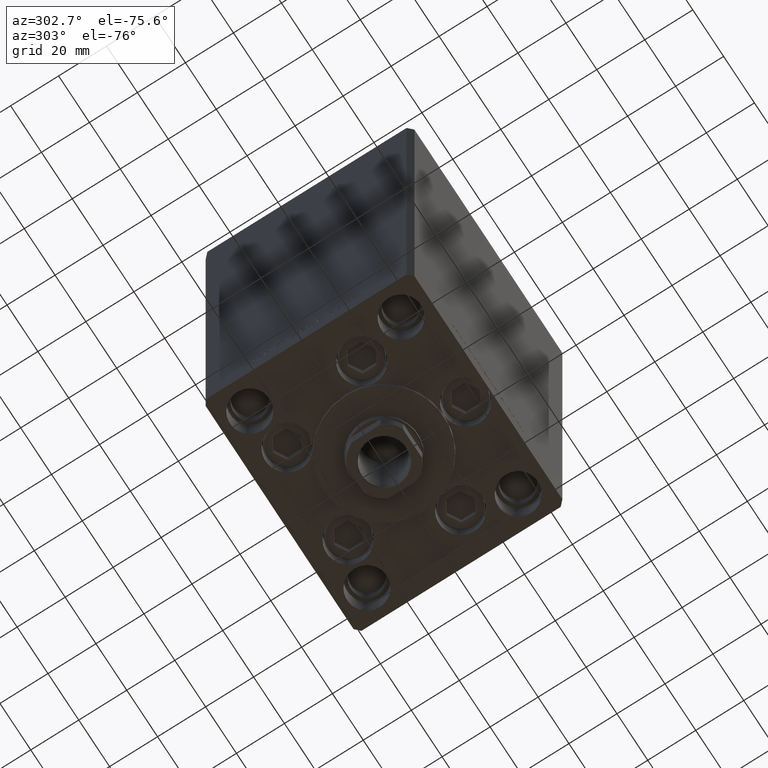
[diagram: clean part render]
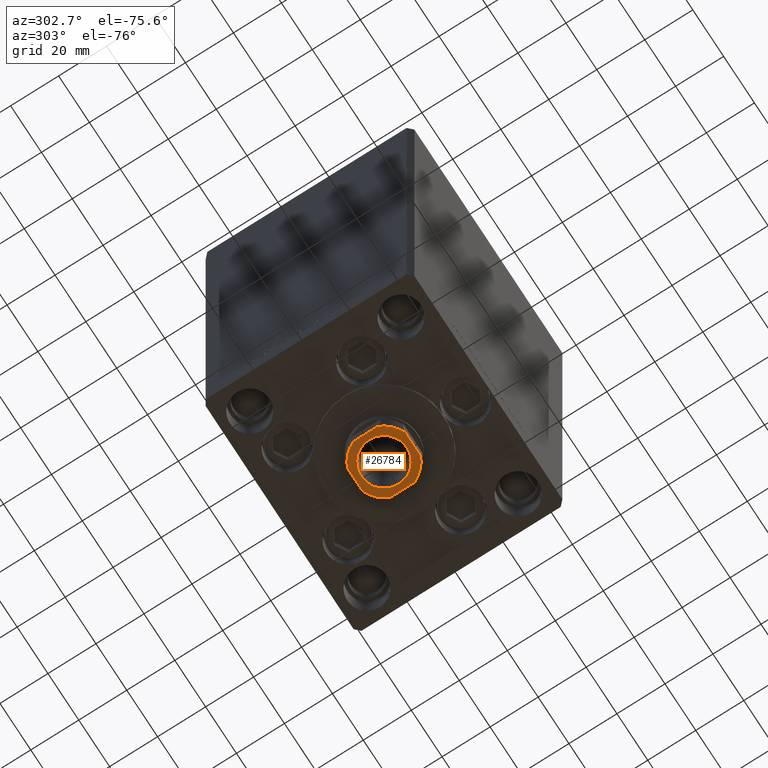
[diagram: same view with one face highlighted and labeled with its STEP entity id]
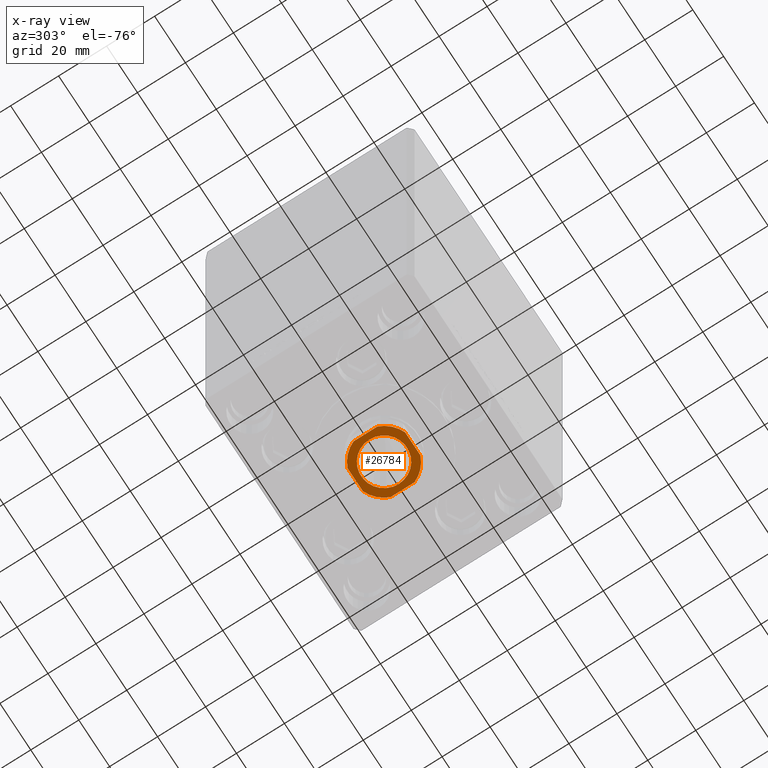
[diagram: x-ray of the same camera — body ghosted, the highlighted face saturated]
A machine part, auxiliary view. The second image highlights one B-rep face of the part: STEP entity #26784.
The next image is the same camera in x-ray: the body ghosted, the highlighted face saturated — about 0% of this face is hidden behind the body in this view.
In plain terms, the highlighted planar face has unit normal (0, 0, -1).
Its self-contained STEP definition (entity closure, byte-faithful):
#893 = CARTESIAN_POINT ( 'NONE',  ( -11.99999999999999822, 5.000000000000000888, 185.2500000000000000 ) ) ;
#1208 = CARTESIAN_POINT ( 'NONE',  ( 0.000000000000000000, 0.000000000000000000, 185.2500000000000000 ) ) ;
#1917 = DIRECTION ( 'NONE',  ( 1.000000000000000000, 0.000000000000000000, 0.000000000000000000 ) ) ;
#2779 = VERTEX_POINT ( 'NONE', #35088 ) ;
#3791 = FACE_OUTER_BOUND ( 'NONE', #42234, .T. ) ;
#4296 = VERTEX_POINT ( 'NONE', #28272 ) ;
#5048 = DIRECTION ( 'NONE',  ( 1.000000000000000000, 0.000000000000000000, 0.000000000000000000 ) ) ;
#6066 = ORIENTED_EDGE ( 'NONE', *, *, #19764, .T. ) ;
#7056 = AXIS2_PLACEMENT_3D ( 'NONE', #24783, #36702, #47391 ) ;
#7278 = DIRECTION ( 'NONE',  ( -0.000000000000000000, 0.000000000000000000, 1.000000000000000000 ) ) ;
#7584 = AXIS2_PLACEMENT_3D ( 'NONE', #24998, #29223, #44377 ) ;
#7858 = EDGE_CURVE ( 'NONE', #15651, #8137, #23389, .T. ) ;
#8137 = VERTEX_POINT ( 'NONE', #29644 ) ;
#10470 = EDGE_CURVE ( 'NONE', #29458, #15651, #12326, .T. ) ;
#11250 = EDGE_CURVE ( 'NONE', #2779, #14881, #29048, .T. ) ;
#11852 = CARTESIAN_POINT ( 'NONE',  ( -11.99999999999999822, -5.000000000000001776, 185.2500000000000000 ) ) ;
#12326 = LINE ( 'NONE', #28267, #35386 ) ;
#13733 = EDGE_CURVE ( 'NONE', #38905, #2779, #24884, .T. ) ;
#13796 = DIRECTION ( 'NONE',  ( -1.445602896647339163E-16, 1.000000000000000000, -0.000000000000000000 ) ) ;
#14881 = VERTEX_POINT ( 'NONE', #893 ) ;
#15227 = DIRECTION ( 'NONE',  ( 1.000000000000000000, 0.000000000000000000, 0.000000000000000000 ) ) ;
#15651 = VERTEX_POINT ( 'NONE', #18902 ) ;
#15671 = CARTESIAN_POINT ( 'NONE',  ( 0.000000000000000000, 0.000000000000000000, 185.2500000000000000 ) ) ;
#16061 = AXIS2_PLACEMENT_3D ( 'NONE', #1208, #42999, #24112 ) ;
#16237 = AXIS2_PLACEMENT_3D ( 'NONE', #20834, #28551, #1917 ) ;
#16673 = CIRCLE ( 'NONE', #29404, 13.00000000000000000 ) ;
#17619 = LINE ( 'NONE', #40735, #27594 ) ;
#18789 = AXIS2_PLACEMENT_3D ( 'NONE', #31909, #47062, #5048 ) ;
#18902 = CARTESIAN_POINT ( 'NONE',  ( 4.999999999999993783, -12.00000000000000178, 185.2500000000000000 ) ) ;
#18979 = PLANE ( 'NONE',  #41889 ) ;
#19764 = EDGE_CURVE ( 'NONE', #8137, #42041, #28750, .T. ) ;
#20202 = CARTESIAN_POINT ( 'NONE',  ( 9.550000000000057554, 0.000000000000000000, 185.2500000000000000 ) ) ;
#20834 = CARTESIAN_POINT ( 'NONE',  ( 0.000000000000000000, 0.000000000000000000, 185.2500000000000000 ) ) ;
#22388 = ORIENTED_EDGE ( 'NONE', *, *, #36894, .T. ) ;
#23389 = CIRCLE ( 'NONE', #16237, 13.00000000000000000 ) ;
#23651 = ORIENTED_EDGE ( 'NONE', *, *, #13733, .T. ) ;
#24112 = DIRECTION ( 'NONE',  ( 1.000000000000000000, 0.000000000000000000, 0.000000000000000000 ) ) ;
#24370 = EDGE_CURVE ( 'NONE', #4296, #36043, #41811, .T. ) ;
#24783 = CARTESIAN_POINT ( 'NONE',  ( 0.000000000000000000, 0.000000000000000000, 185.2500000000000000 ) ) ;
#24884 = LINE ( 'NONE', #47495, #29961 ) ;
#24998 = CARTESIAN_POINT ( 'NONE',  ( 0.000000000000000000, 0.000000000000000000, 185.2500000000000000 ) ) ;
#25258 = CARTESIAN_POINT ( 'NONE',  ( 5.000000000000002665, 12.00000000000000000, 185.2500000000000000 ) ) ;
#25601 = CIRCLE ( 'NONE', #16061, 9.550000000000057554 ) ;
#25901 = EDGE_CURVE ( 'NONE', #14881, #41561, #17619, .T. ) ;
#26164 = CARTESIAN_POINT ( 'NONE',  ( -4.999999999999992895, -12.00000000000000178, 185.2500000000000000 ) ) ;
#26784 = ADVANCED_FACE ( 'NONE', ( #33402, #3791 ), #18979, .T. ) ;
#27503 = ORIENTED_EDGE ( 'NONE', *, *, #25901, .T. ) ;
#27594 = VECTOR ( 'NONE', #48432, 1000.000000000000000 ) ;
#28267 = CARTESIAN_POINT ( 'NONE',  ( -11.99999999999999645, -12.00000000000000178, 185.2500000000000000 ) ) ;
#28272 = CARTESIAN_POINT ( 'NONE',  ( -9.550000000000057554, 1.169537693185729263E-15, 185.2500000000000000 ) ) ;
#28551 = DIRECTION ( 'NONE',  ( -0.000000000000000000, 0.000000000000000000, 1.000000000000000000 ) ) ;
#28750 = LINE ( 'NONE', #44150, #48800 ) ;
#29048 = CIRCLE ( 'NONE', #7584, 13.00000000000000000 ) ;
#29223 = DIRECTION ( 'NONE',  ( -0.000000000000000000, 0.000000000000000000, 1.000000000000000000 ) ) ;
#29404 = AXIS2_PLACEMENT_3D ( 'NONE', #15671, #38303, #45765 ) ;
#29443 = CARTESIAN_POINT ( 'NONE',  ( 0.000000000000000000, 0.000000000000000000, 185.2500000000000000 ) ) ;
#29458 = VERTEX_POINT ( 'NONE', #26164 ) ;
#29644 = CARTESIAN_POINT ( 'NONE',  ( 12.00000000000000178, -4.999999999999990230, 185.2500000000000000 ) ) ;
#29961 = VECTOR ( 'NONE', #47246, 1000.000000000000000 ) ;
#30435 = ORIENTED_EDGE ( 'NONE', *, *, #42105, .T. ) ;
#30805 = ORIENTED_EDGE ( 'NONE', *, *, #32847, .T. ) ;
#31909 = CARTESIAN_POINT ( 'NONE',  ( 0.000000000000000000, 0.000000000000000000, 185.2500000000000000 ) ) ;
#32847 = EDGE_CURVE ( 'NONE', #41561, #29458, #43590, .T. ) ;
#33402 = FACE_BOUND ( 'NONE', #38103, .T. ) ;
#34292 = ORIENTED_EDGE ( 'NONE', *, *, #24370, .T. ) ;
#35088 = CARTESIAN_POINT ( 'NONE',  ( -5.000000000000001776, 11.99999999999999822, 185.2500000000000000 ) ) ;
#35386 = VECTOR ( 'NONE', #38703, 1000.000000000000000 ) ;
#36043 = VERTEX_POINT ( 'NONE', #20202 ) ;
#36702 = DIRECTION ( 'NONE',  ( -0.000000000000000000, 0.000000000000000000, 1.000000000000000000 ) ) ;
#36772 = ORIENTED_EDGE ( 'NONE', *, *, #10470, .T. ) ;
#36894 = EDGE_CURVE ( 'NONE', #42041, #38905, #16673, .T. ) ;
#38072 = ORIENTED_EDGE ( 'NONE', *, *, #7858, .T. ) ;
#38103 = EDGE_LOOP ( 'NONE', ( #30435, #34292 ) ) ;
#38303 = DIRECTION ( 'NONE',  ( -0.000000000000000000, 0.000000000000000000, 1.000000000000000000 ) ) ;
#38703 = DIRECTION ( 'NONE',  ( 1.000000000000000000, 7.228014483236695816E-17, 0.000000000000000000 ) ) ;
#38905 = VERTEX_POINT ( 'NONE', #25258 ) ;
#39784 = ORIENTED_EDGE ( 'NONE', *, *, #11250, .T. ) ;
#40735 = CARTESIAN_POINT ( 'NONE',  ( -11.99999999999999822, 11.99999999999999822, 185.2500000000000000 ) ) ;
#41561 = VERTEX_POINT ( 'NONE', #11852 ) ;
#41811 = CIRCLE ( 'NONE', #18789, 9.550000000000057554 ) ;
#41889 = AXIS2_PLACEMENT_3D ( 'NONE', #29443, #7278, #15227 ) ;
#42041 = VERTEX_POINT ( 'NONE', #44537 ) ;
#42105 = EDGE_CURVE ( 'NONE', #36043, #4296, #25601, .T. ) ;
#42234 = EDGE_LOOP ( 'NONE', ( #27503, #30805, #36772, #38072, #6066, #22388, #23651, #39784 ) ) ;
#42999 = DIRECTION ( 'NONE',  ( 0.000000000000000000, -0.000000000000000000, -1.000000000000000000 ) ) ;
#43590 = CIRCLE ( 'NONE', #7056, 13.00000000000000000 ) ;
#44150 = CARTESIAN_POINT ( 'NONE',  ( 12.00000000000000000, 12.00000000000000000, 185.2500000000000000 ) ) ;
#44377 = DIRECTION ( 'NONE',  ( 1.000000000000000000, 0.000000000000000000, 0.000000000000000000 ) ) ;
#44537 = CARTESIAN_POINT ( 'NONE',  ( 12.00000000000000178, 4.999999999999994671, 185.2500000000000000 ) ) ;
#45765 = DIRECTION ( 'NONE',  ( 1.000000000000000000, 0.000000000000000000, 0.000000000000000000 ) ) ;
#47062 = DIRECTION ( 'NONE',  ( 0.000000000000000000, -0.000000000000000000, -1.000000000000000000 ) ) ;
#47246 = DIRECTION ( 'NONE',  ( -1.000000000000000000, -7.228014483236695816E-17, -0.000000000000000000 ) ) ;
#47391 = DIRECTION ( 'NONE',  ( 1.000000000000000000, 0.000000000000000000, 0.000000000000000000 ) ) ;
#47495 = CARTESIAN_POINT ( 'NONE',  ( -11.99999999999999822, 11.99999999999999822, 185.2500000000000000 ) ) ;
#48432 = DIRECTION ( 'NONE',  ( 7.228014483236695816E-17, -1.000000000000000000, 0.000000000000000000 ) ) ;
#48800 = VECTOR ( 'NONE', #13796, 1000.000000000000000 ) ;